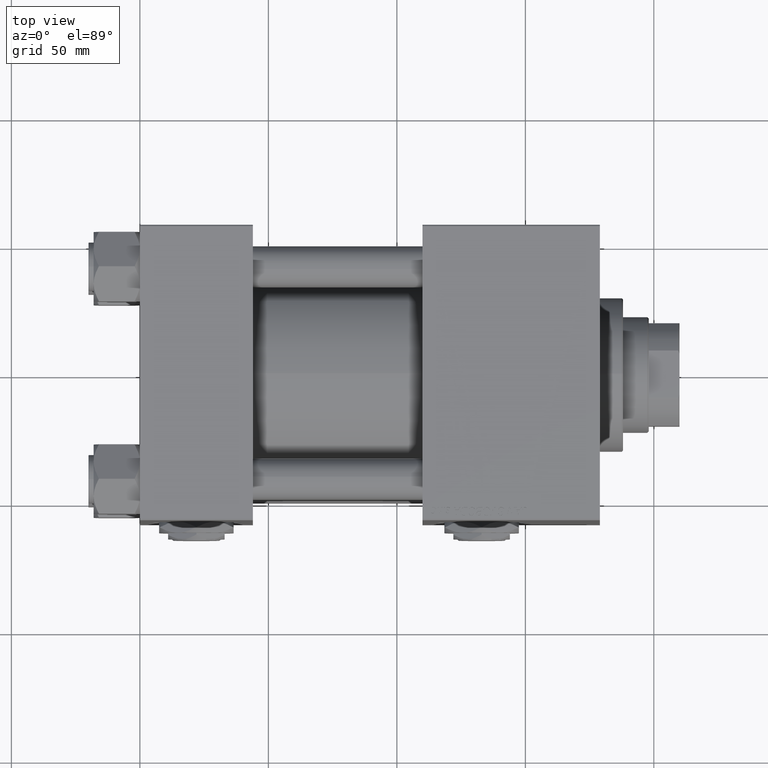
[diagram: clean part render]
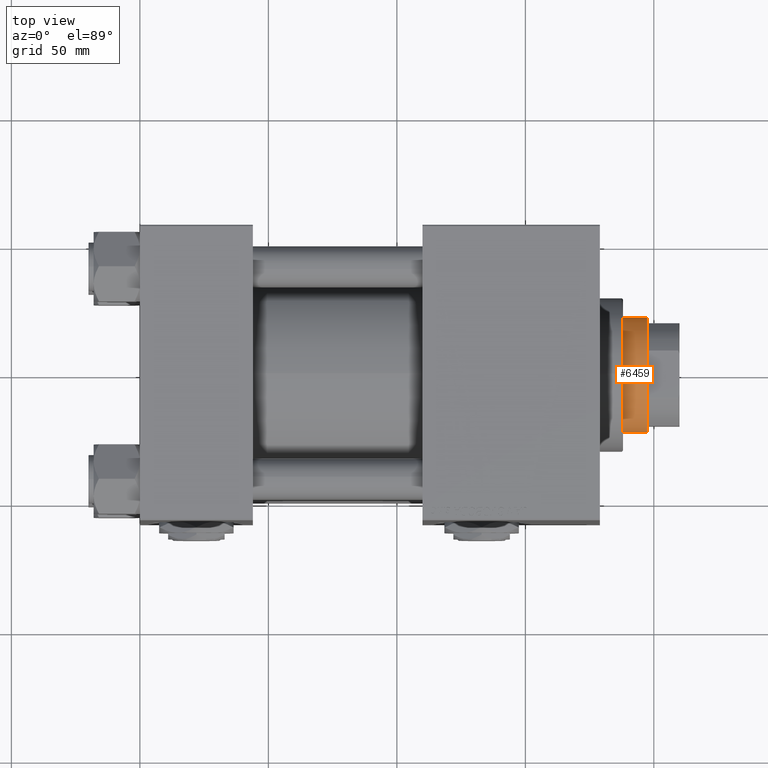
[diagram: same view with one face highlighted and labeled with its STEP entity id]
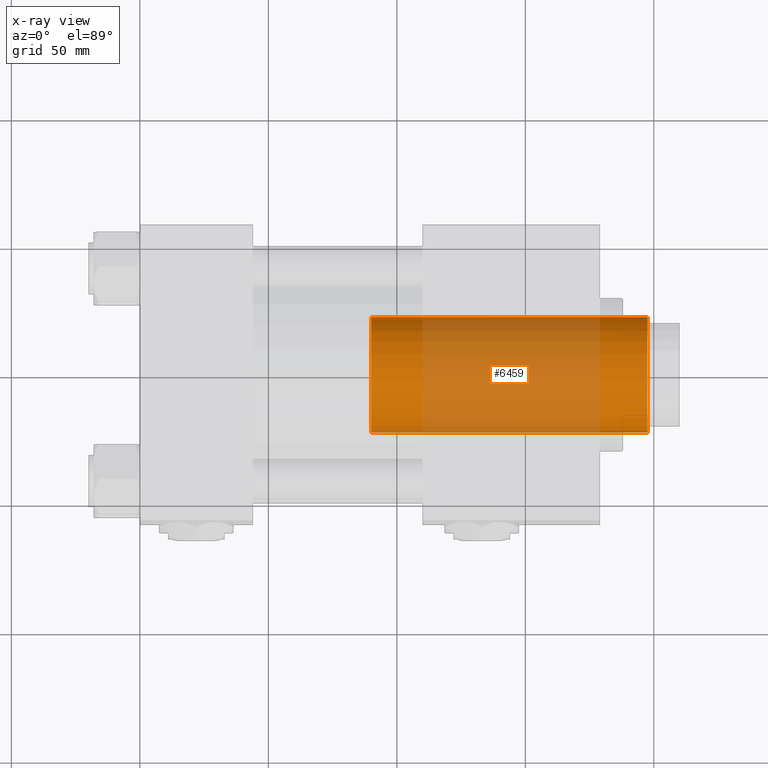
[diagram: x-ray of the same camera — body ghosted, the highlighted face saturated]
A machine part, top view. The second image highlights one B-rep face of the part: STEP entity #6459.
The next image is the same camera in x-ray: the body ghosted, the highlighted face saturated — about 65% of this face is hidden behind the body in this view.
In plain terms, the highlighted cylindrical surface (partial cylindrical patch) has radius 22.5 mm, axis along (-1, 0, 0).
Its self-contained STEP definition (entity closure, byte-faithful):
#1531 = CYLINDRICAL_SURFACE ( 'NONE', #40302, 22.50000000000000355 ) ;
#1790 = DIRECTION ( 'NONE',  ( -0.000000000000000000, -0.000000000000000000, -1.000000000000000000 ) ) ;
#2582 = AXIS2_PLACEMENT_3D ( 'NONE', #28102, #16630, #44150 ) ;
#4996 = EDGE_LOOP ( 'NONE', ( #45163, #7422, #36275, #34904 ) ) ;
#5297 = CARTESIAN_POINT ( 'NONE',  ( -22.50000000000000355, 0.000000000000000000, 46.00000000000000000 ) ) ;
#6459 = ADVANCED_FACE ( 'NONE', ( #21058 ), #1531, .T. ) ;
#7422 = ORIENTED_EDGE ( 'NONE', *, *, #15220, .T. ) ;
#9638 = VERTEX_POINT ( 'NONE', #5297 ) ;
#9809 = CARTESIAN_POINT ( 'NONE',  ( 0.000000000000000000, 0.000000000000000000, 154.0000000000000000 ) ) ;
#10895 = VERTEX_POINT ( 'NONE', #36200 ) ;
#13164 = LINE ( 'NONE', #14204, #35098 ) ;
#14204 = CARTESIAN_POINT ( 'NONE',  ( 22.50000000000000355, 2.755455298081545172E-15, 154.0000000000000000 ) ) ;
#15220 = EDGE_CURVE ( 'NONE', #50323, #10895, #40606, .T. ) ;
#16630 = DIRECTION ( 'NONE',  ( 0.000000000000000000, 0.000000000000000000, 1.000000000000000000 ) ) ;
#21058 = FACE_OUTER_BOUND ( 'NONE', #4996, .T. ) ;
#22985 = DIRECTION ( 'NONE',  ( -0.000000000000000000, -0.000000000000000000, -1.000000000000000000 ) ) ;
#24154 = CARTESIAN_POINT ( 'NONE',  ( 22.50000000000000355, 2.755455298081545172E-15, 46.00000000000000000 ) ) ;
#26744 = LINE ( 'NONE', #30484, #34261 ) ;
#27097 = AXIS2_PLACEMENT_3D ( 'NONE', #51161, #51958, #38623 ) ;
#28102 = CARTESIAN_POINT ( 'NONE',  ( 0.000000000000000000, 0.000000000000000000, 46.00000000000000000 ) ) ;
#29065 = CIRCLE ( 'NONE', #2582, 22.50000000000000355 ) ;
#30484 = CARTESIAN_POINT ( 'NONE',  ( -22.50000000000000355, 0.000000000000000000, 154.0000000000000000 ) ) ;
#33839 = EDGE_CURVE ( 'NONE', #9638, #39969, #29065, .T. ) ;
#34261 = VECTOR ( 'NONE', #51588, 1000.000000000000000 ) ;
#34904 = ORIENTED_EDGE ( 'NONE', *, *, #33839, .T. ) ;
#35098 = VECTOR ( 'NONE', #22985, 1000.000000000000000 ) ;
#36200 = CARTESIAN_POINT ( 'NONE',  ( -22.50000000000000355, 0.000000000000000000, 153.5000000000000284 ) ) ;
#36275 = ORIENTED_EDGE ( 'NONE', *, *, #45511, .T. ) ;
#38623 = DIRECTION ( 'NONE',  ( 1.000000000000000000, 0.000000000000000000, 0.000000000000000000 ) ) ;
#39969 = VERTEX_POINT ( 'NONE', #24154 ) ;
#40302 = AXIS2_PLACEMENT_3D ( 'NONE', #9809, #1790, #50168 ) ;
#40606 = CIRCLE ( 'NONE', #27097, 22.50000000000000355 ) ;
#40900 = CARTESIAN_POINT ( 'NONE',  ( 22.50000000000000355, 2.755455298081545172E-15, 153.5000000000000284 ) ) ;
#44150 = DIRECTION ( 'NONE',  ( 1.000000000000000000, 0.000000000000000000, 0.000000000000000000 ) ) ;
#45163 = ORIENTED_EDGE ( 'NONE', *, *, #45447, .F. ) ;
#45447 = EDGE_CURVE ( 'NONE', #50323, #39969, #13164, .T. ) ;
#45511 = EDGE_CURVE ( 'NONE', #10895, #9638, #26744, .T. ) ;
#50168 = DIRECTION ( 'NONE',  ( -1.000000000000000000, 0.000000000000000000, 0.000000000000000000 ) ) ;
#50323 = VERTEX_POINT ( 'NONE', #40900 ) ;
#51161 = CARTESIAN_POINT ( 'NONE',  ( 0.000000000000000000, 0.000000000000000000, 153.5000000000000284 ) ) ;
#51588 = DIRECTION ( 'NONE',  ( -0.000000000000000000, -0.000000000000000000, -1.000000000000000000 ) ) ;
#51958 = DIRECTION ( 'NONE',  ( 0.000000000000000000, 0.000000000000000000, -1.000000000000000000 ) ) ;